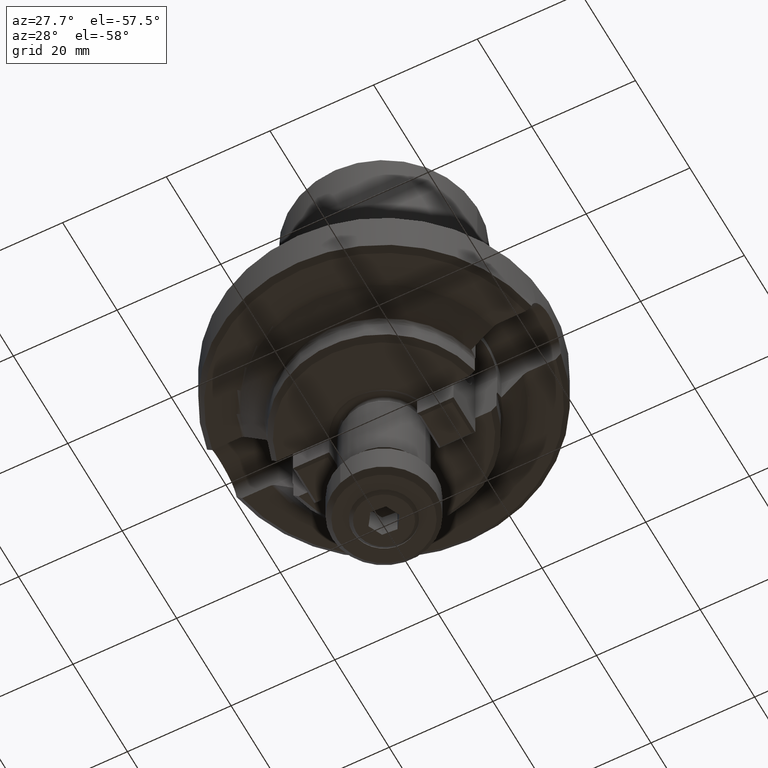
[diagram: clean part render]
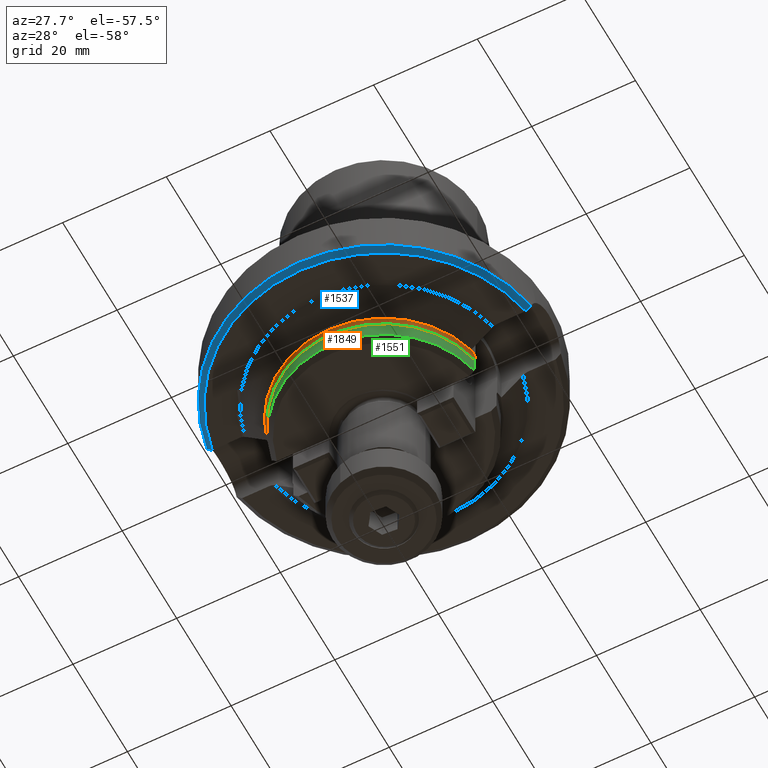
[diagram: same view with three faces highlighted in distinct colors, each labeled with its STEP entity id]
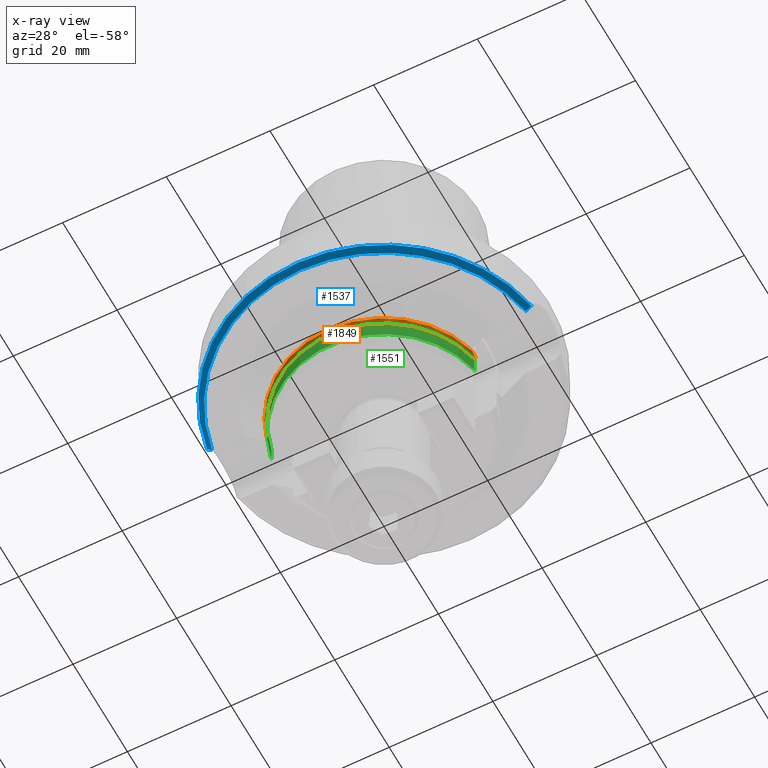
[diagram: x-ray of the same camera — body ghosted, the three highlighted faces saturated]
A machine part, auxiliary view with three faces highlighted in distinct colors.
The next image is the same camera in x-ray (body ghosted, the three faces saturated) — at least one of them is partly hidden behind the body in this view.
Their STEP definitions:

[orange] entity #1849 — the highlighted toroidal blend (fillet) surface has major radius 21.5 mm and minor (blend) radius 1.5 mm.
#1521=VERTEX_POINT('NONE',#3776);
#1593=VERTEX_POINT('NONE',#3853);
#1807=EDGE_CURVE('NONE',#1593,#1879,#4095,.T.);
#1849=ADVANCED_FACE('NONE',(#4140),#4141,.F.);
#1879=VERTEX_POINT('NONE',#4173);
#1903=VERTEX_POINT('NONE',#4201);
#2007=VERTEX_POINT('NONE',#4318);
#2031=EDGE_CURVE('NONE',#1879,#2007,#4344,.T.);
#2139=EDGE_CURVE('NONE',#1521,#1593,#4468,.T.);
#2211=VERTEX_POINT('NONE',#4550);
#2431=EDGE_CURVE('NONE',#1903,#2211,#4797,.T.);
#2719=EDGE_CURVE('NONE',#2211,#1521,#5123,.T.);
#2903=EDGE_CURVE('NONE',#2007,#1903,#5321,.T.);
#3776=CARTESIAN_POINT('',(19.5959179422654,-4.0,-15.6213203435597));
#3853=CARTESIAN_POINT('',(-19.5959179422654,-4.0,-15.6213203435597));
#4095=B_SPLINE_CURVE_WITH_KNOTS('',3,(#7244,#7245,#7246,#7247,#7248,#7249),.UNSPECIFIED.,.F.,.F.,(4,2,4),(0.0,0.000338084746374833,0.000676169492749666),.UNSPECIFIED.);
#4140=FACE_OUTER_BOUND('',#7310,.T.);
#4141=TOROIDAL_SURFACE('',#7311,21.5,1.5);
#4173=CARTESIAN_POINT('',(-19.75,-4.0,-14.9654401337605));
#4201=CARTESIAN_POINT('',(19.75,-5.26346963641554,-14.5606601717798));
#4318=CARTESIAN_POINT('',(-19.75,-5.26346963641554,-14.5606601717798));
#4344=B_SPLINE_CURVE_WITH_KNOTS('',3,(#7646,#7647,#7648,#7649,#7650,#7651),.UNSPECIFIED.,.F.,.F.,(4,2,4),(0.0179320618067941,0.0185939877105576,0.019255913614321),.UNSPECIFIED.);
#4468=CIRCLE('',#7851,20.0);
#4550=CARTESIAN_POINT('',(19.75,-4.0,-14.9654401337282));
#4797=B_SPLINE_CURVE_WITH_KNOTS('',3,(#8446,#8447,#8448,#8449,#8450,#8451),.UNSPECIFIED.,.F.,.F.,(4,2,4),(0.0192469888341022,0.0199101801761477,0.0205733715181932),.UNSPECIFIED.);
#5123=B_SPLINE_CURVE_WITH_KNOTS('',3,(#9046,#9047,#9048,#9049,#9050,#9051),.UNSPECIFIED.,.F.,.F.,(4,2,4),(0.000500351230029548,0.000837927596910037,0.00117550396379053),.UNSPECIFIED.);
#5321=CIRCLE('',#9401,20.4393398282202);
#7244=CARTESIAN_POINT('',(-19.5959179422654,-4.0,-15.6213203435597));
#7245=CARTESIAN_POINT('',(-19.5959179422654,-4.0,-15.506988213467));
#7246=CARTESIAN_POINT('',(-19.609086936185,-4.0,-15.394908972832));
#7247=CARTESIAN_POINT('',(-19.6607044760356,-4.0,-15.1750751982607));
#7248=CARTESIAN_POINT('',(-19.6998543974556,-4.0,-15.0665266754873));
#7249=CARTESIAN_POINT('',(-19.75,-4.0,-14.9654401337605));
#7310=EDGE_LOOP('',(#11076,#11077,#11078,#11079,#11080,#11081));
#7311=AXIS2_PLACEMENT_3D('',#11082,#11083,#11084);
#7646=CARTESIAN_POINT('',(-19.75,-4.0,-14.9654401337605));
#7647=CARTESIAN_POINT('',(-19.75,-4.20502841529287,-14.8817320439721));
#7648=CARTESIAN_POINT('',(-19.75,-4.41427588342577,-14.8091041476488));
#7649=CARTESIAN_POINT('',(-19.75,-4.83602364711543,-14.6760674192716));
#7650=CARTESIAN_POINT('',(-19.75,-5.04863903140716,-14.615982622306));
#7651=CARTESIAN_POINT('',(-19.75,-5.26346963641554,-14.5606601717798));
#7851=AXIS2_PLACEMENT_3D('',#11480,#11481,#11482);
#8446=CARTESIAN_POINT('',(19.75,-5.26346963641554,-14.5606601717798));
#8447=CARTESIAN_POINT('',(19.75,-5.04927816158442,-14.6158180356652));
#8448=CARTESIAN_POINT('',(19.75,-4.83561163418951,-14.6761869903794));
#8449=CARTESIAN_POINT('',(19.75,-4.41377223921208,-14.8092734353484));
#8450=CARTESIAN_POINT('',(19.75,-4.2049336483355,-14.8817707350046));
#8451=CARTESIAN_POINT('',(19.75,-4.0,-14.9654401337282));
#9046=CARTESIAN_POINT('',(19.75,-4.0,-14.9654401337282));
#9047=CARTESIAN_POINT('',(19.6992862900129,-4.0,-15.0676719008624));
#9048=CARTESIAN_POINT('',(19.6611501994856,-4.0,-15.1737306286251));
#9049=CARTESIAN_POINT('',(19.6093948555869,-4.0,-15.3930518790144));
#9050=CARTESIAN_POINT('',(19.5959179422654,-4.0,-15.5071667710914));
#9051=CARTESIAN_POINT('',(19.5959179422654,-4.0,-15.6213203435597));
#9401=AXIS2_PLACEMENT_3D('',#12514,#12515,#12516);
#11076=ORIENTED_EDGE('',*,*,#2031,.F.);
#11077=ORIENTED_EDGE('',*,*,#1807,.F.);
#11078=ORIENTED_EDGE('',*,*,#2139,.F.);
#11079=ORIENTED_EDGE('',*,*,#2719,.F.);
#11080=ORIENTED_EDGE('',*,*,#2431,.F.);
#11081=ORIENTED_EDGE('',*,*,#2903,.F.);
#11082=CARTESIAN_POINT('',(0.0,0.0,-15.6213203435597));
#11083=DIRECTION('',(0.0,0.0,1.0));
#11084=DIRECTION('',(1.0,0.0,0.0));
#11480=CARTESIAN_POINT('',(0.0,0.0,-15.6213203435597));
#11481=DIRECTION('',(0.0,0.0,-1.0));
#11482=DIRECTION('',(1.0,0.0,0.0));
#12514=CARTESIAN_POINT('',(0.0,0.0,-14.5606601717799));
#12515=DIRECTION('',(0.0,0.0,1.0));
#12516=DIRECTION('',(1.0,0.0,0.0));

[blue] entity #1537 — the highlighted conical surface has half-angle 45 deg.
#1537=ADVANCED_FACE('NONE',(#3794),#3795,.T.);
#1739=EDGE_CURVE('NONE',#1793,#2163,#4016,.T.);
#1751=EDGE_CURVE('NONE',#1965,#2615,#4030,.T.);
#1793=VERTEX_POINT('NONE',#4078);
#1801=EDGE_CURVE('NONE',#1793,#1965,#4089,.T.);
#1965=VERTEX_POINT('NONE',#4271);
#2163=VERTEX_POINT('NONE',#4496);
#2615=VERTEX_POINT('NONE',#5003);
#2977=EDGE_CURVE('NONE',#2615,#2163,#5401,.T.);
#3794=FACE_OUTER_BOUND('',#6550,.T.);
#3795=CONICAL_SURFACE('',#6551,37.2140620983944,0.785398163397453);
#4016=B_SPLINE_CURVE_WITH_KNOTS('',3,(#7121,#7122,#7123,#7124),.UNSPECIFIED.,.F.,.F.,(4,4),(0.000146105316392985,0.00158593615829999),.UNSPECIFIED.);
#4030=B_SPLINE_CURVE_WITH_KNOTS('',3,(#7145,#7146,#7147,#7148),.UNSPECIFIED.,.F.,.F.,(4,4),(0.000146105316392985,0.00158593615829999),.UNSPECIFIED.);
#4078=CARTESIAN_POINT('',(31.2859792878535,-5.40832691319599,-9.00000000000001));
#4089=CIRCLE('',#7234,31.75);
#4271=CARTESIAN_POINT('',(-31.2859792878535,-5.40832691319599,-9.00000000000001));
#4496=CARTESIAN_POINT('',(30.2541319492065,-5.5,-10.0));
#5003=CARTESIAN_POINT('',(-30.2541319492065,-5.5,-10.0));
#5401=CIRCLE('',#9507,30.75);
#6550=EDGE_LOOP('',(#10668,#10669,#10670,#10671));
#6551=AXIS2_PLACEMENT_3D('',#10672,#10673,#10674);
#7121=CARTESIAN_POINT('',(31.2859792878535,-5.40832691319599,-9.00000000000001));
#7122=CARTESIAN_POINT('',(30.9410385958205,-5.4692553371423,-9.32952083500716));
#7123=CARTESIAN_POINT('',(30.5969584746693,-5.50000000000006,-9.66270182318571));
#7124=CARTESIAN_POINT('',(30.2541319492065,-5.5,-10.0));
#7145=CARTESIAN_POINT('',(-31.2859792878535,-5.40832691319599,-9.00000000000001));
#7146=CARTESIAN_POINT('',(-30.9410385958205,-5.4692553371423,-9.32952083500716));
#7147=CARTESIAN_POINT('',(-30.5969584746693,-5.50000000000006,-9.66270182318571));
#7148=CARTESIAN_POINT('',(-30.2541319492065,-5.5,-10.0));
#7234=AXIS2_PLACEMENT_3D('',#11019,#11020,#11021);
#9507=AXIS2_PLACEMENT_3D('',#12617,#12618,#12619);
#10668=ORIENTED_EDGE('',*,*,#1801,.T.);
#10669=ORIENTED_EDGE('',*,*,#1751,.T.);
#10670=ORIENTED_EDGE('',*,*,#2977,.T.);
#10671=ORIENTED_EDGE('',*,*,#1739,.F.);
#10672=CARTESIAN_POINT('',(0.0,0.0,-3.53593790160565));
#10673=DIRECTION('',(-0.0,-0.0,1.0));
#10674=DIRECTION('',(1.0,0.0,0.0));
#11019=CARTESIAN_POINT('',(0.0,0.0,-9.00000000000001));
#11020=DIRECTION('',(0.0,0.0,-1.0));
#11021=DIRECTION('',(1.0,0.0,0.0));
#12617=CARTESIAN_POINT('',(0.0,0.0,-10.0));
#12618=DIRECTION('',(0.0,0.0,1.0));
#12619=DIRECTION('',(1.0,0.0,0.0));

[green] entity #1551 — the highlighted cylindrical surface (partial cylindrical patch) has radius 20 mm, axis along (-0, -0, 1).
#1511=VERTEX_POINT('NONE',#3765);
#1521=VERTEX_POINT('NONE',#3776);
#1551=ADVANCED_FACE('NONE',(#3810),#3811,.T.);
#1593=VERTEX_POINT('NONE',#3853);
#1783=VERTEX_POINT('NONE',#4067);
#2139=EDGE_CURVE('NONE',#1521,#1593,#4468,.T.);
#2911=EDGE_CURVE('NONE',#1521,#1511,#5329,.T.);
#2933=EDGE_CURVE('NONE',#1593,#1783,#5353,.T.);
#3191=EDGE_CURVE('NONE',#1511,#1783,#5642,.T.);
#3765=CARTESIAN_POINT('',(19.5959179422654,-4.0,-19.0));
#3776=CARTESIAN_POINT('',(19.5959179422654,-4.0,-15.6213203435597));
#3810=FACE_OUTER_BOUND('',#6575,.T.);
#3811=CYLINDRICAL_SURFACE('',#6576,20.0);
#3853=CARTESIAN_POINT('',(-19.5959179422654,-4.0,-15.6213203435597));
#4067=CARTESIAN_POINT('',(-19.5959179422654,-4.0,-19.0));
#4468=CIRCLE('',#7851,20.0);
#5329=LINE('',#9412,#9413);
#5353=LINE('',#9446,#9447);
#5642=CIRCLE('',#9896,20.0);
#6575=EDGE_LOOP('',(#10688,#10689,#10690,#10691));
#6576=AXIS2_PLACEMENT_3D('',#10692,#10693,#10694);
#7851=AXIS2_PLACEMENT_3D('',#11480,#11481,#11482);
#9412=CARTESIAN_POINT('',(19.5959179422654,-4.0,40.0));
#9413=VECTOR('',#12523,1000.0);
#9446=CARTESIAN_POINT('',(-19.5959179422654,-4.0,40.0));
#9447=VECTOR('',#12561,1000.0);
#9896=AXIS2_PLACEMENT_3D('',#12921,#12922,#12923);
#10688=ORIENTED_EDGE('',*,*,#2911,.F.);
#10689=ORIENTED_EDGE('',*,*,#2139,.T.);
#10690=ORIENTED_EDGE('',*,*,#2933,.T.);
#10691=ORIENTED_EDGE('',*,*,#3191,.F.);
#10692=CARTESIAN_POINT('',(0.0,0.0,40.0));
#10693=DIRECTION('',(-0.0,-0.0,1.0));
#10694=DIRECTION('',(1.0,0.0,0.0));
#11480=CARTESIAN_POINT('',(0.0,0.0,-15.6213203435597));
#11481=DIRECTION('',(0.0,0.0,-1.0));
#11482=DIRECTION('',(1.0,0.0,0.0));
#12523=DIRECTION('',(0.0,0.0,-1.0));
#12561=DIRECTION('',(0.0,0.0,-1.0));
#12921=CARTESIAN_POINT('',(0.0,0.0,-19.0));
#12922=DIRECTION('',(0.0,0.0,-1.0));
#12923=DIRECTION('',(1.0,0.0,0.0));